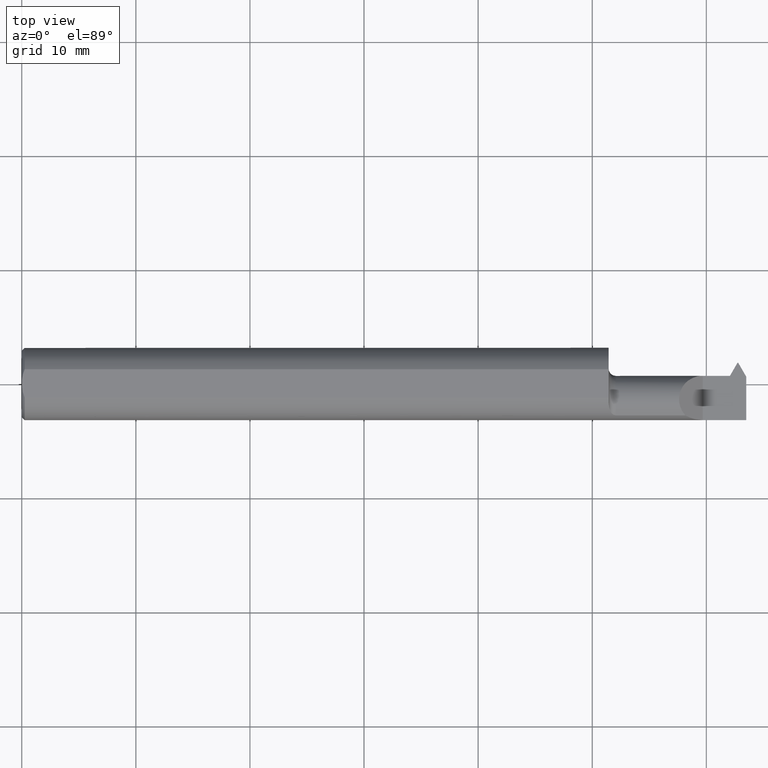
[diagram: clean part render]
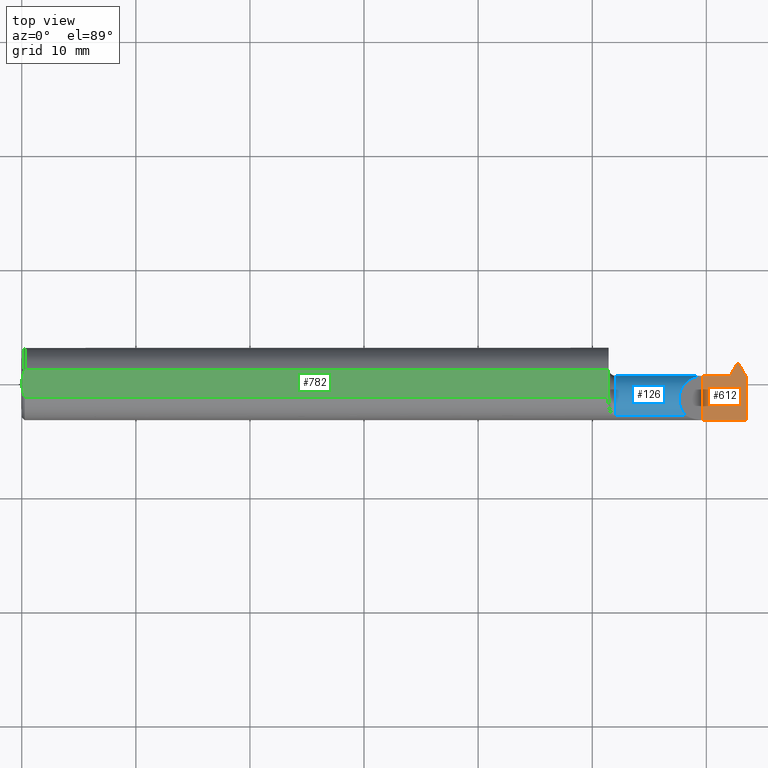
[diagram: same view with three faces highlighted in distinct colors, each labeled with its STEP entity id]
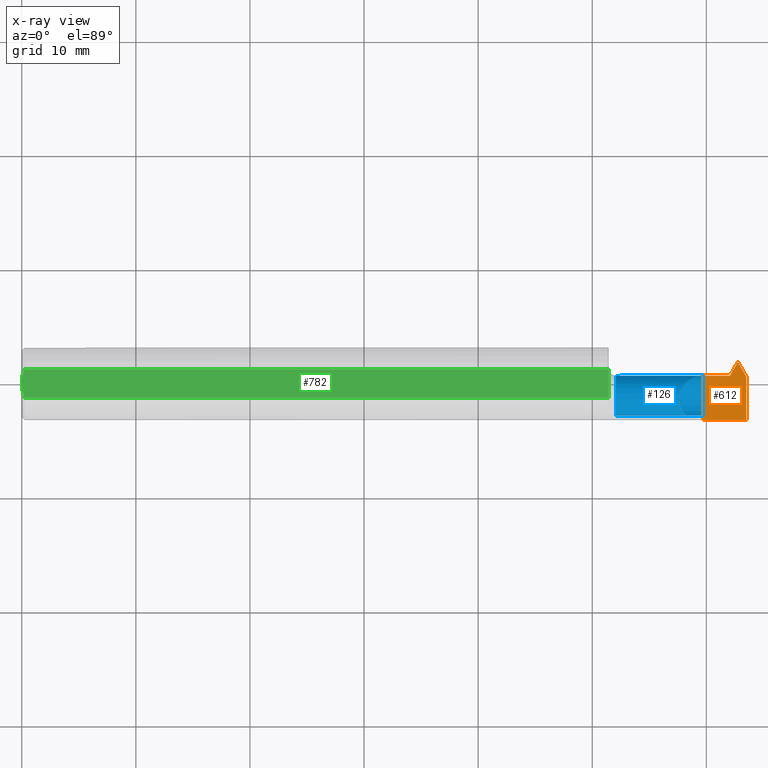
[diagram: x-ray of the same camera — body ghosted, the three highlighted faces saturated]
A machine part, top view with three faces highlighted in distinct colors.
The next image is the same camera in x-ray (body ghosted, the three faces saturated) — at least one of them is partly hidden behind the body in this view.
Their STEP definitions:

[orange] entity #612 — the highlighted planar face has unit normal (-0, 0, -1).
#1 = CARTESIAN_POINT ( 'NONE',  ( 2.024999999999999911, 0.02814999999999995284, 5.817072295949924714E-17 ) ) ;
#16 = EDGE_CURVE ( 'NONE', #765, #645, #353, .T. ) ;
#22 = ORIENTED_EDGE ( 'NONE', *, *, #344, .F. ) ;
#48 = DIRECTION ( 'NONE',  ( -0.000000000000000000, 1.000000000000000000, -0.000000000000000000 ) ) ;
#63 = DIRECTION ( 'NONE',  ( 0.4999999999999965583, 0.8660254037844405950, -0.000000000000000000 ) ) ;
#96 = LINE ( 'NONE', #342, #166 ) ;
#106 = DIRECTION ( 'NONE',  ( 0.4999999999999948375, -0.8660254037844417052, 0.000000000000000000 ) ) ;
#109 = VERTEX_POINT ( 'NONE', #665 ) ;
#115 = VECTOR ( 'NONE', #312, 39.37007874015748143 ) ;
#120 = CARTESIAN_POINT ( 'NONE',  ( 2.500000000000000000, 0.000000000000000000, 0.000000000000000000 ) ) ;
#122 = LINE ( 'NONE', #731, #305 ) ;
#135 = EDGE_CURVE ( 'NONE', #109, #381, #96, .T. ) ;
#166 = VECTOR ( 'NONE', #588, 39.37007874015748143 ) ;
#167 = CARTESIAN_POINT ( 'NONE',  ( 2.500000000000000000, 0.02508559008996252837, 0.000000000000000000 ) ) ;
#177 = VECTOR ( 'NONE', #572, 39.37007874015748143 ) ;
#182 = EDGE_CURVE ( 'NONE', #333, #635, #301, .T. ) ;
#186 = VECTOR ( 'NONE', #48, 39.37007874015748143 ) ;
#187 = AXIS2_PLACEMENT_3D ( 'NONE', #309, #485, #608 ) ;
#196 = EDGE_CURVE ( 'NONE', #645, #109, #609, .T. ) ;
#206 = ORIENTED_EDGE ( 'NONE', *, *, #196, .F. ) ;
#214 = ORIENTED_EDGE ( 'NONE', *, *, #135, .F. ) ;
#243 = CARTESIAN_POINT ( 'NONE',  ( 2.350000000000000089, 0.02815000000000001182, 5.817072295949924714E-17 ) ) ;
#256 = CARTESIAN_POINT ( 'NONE',  ( 2.350000000000000089, -0.1248500000000000165, 1.836970198721029441E-17 ) ) ;
#276 = EDGE_LOOP ( 'NONE', ( #441, #705, #214, #206, #448, #22, #646, #454 ) ) ;
#294 = VECTOR ( 'NONE', #793, 39.37007874015748143 ) ;
#301 = LINE ( 'NONE', #362, #411 ) ;
#305 = VECTOR ( 'NONE', #63, 39.37007874015748854 ) ;
#309 = CARTESIAN_POINT ( 'NONE',  ( 2.500000000000000000, -0.2500000000000000555, 0.000000000000000000 ) ) ;
#312 = DIRECTION ( 'NONE',  ( 1.000000000000000000, 1.860231797550329354E-16, 0.000000000000000000 ) ) ;
#325 = CARTESIAN_POINT ( 'NONE',  ( 2.469749999999999890, 0.07314999999999999281, 0.000000000000000000 ) ) ;
#333 = VERTEX_POINT ( 'NONE', #325 ) ;
#342 = CARTESIAN_POINT ( 'NONE',  ( 2.443769237886467049, 0.02815000000000001182, 0.000000000000000000 ) ) ;
#344 = EDGE_CURVE ( 'NONE', #623, #765, #563, .T. ) ;
#353 = LINE ( 'NONE', #419, #186 ) ;
#362 = CARTESIAN_POINT ( 'NONE',  ( 2.024999999999999911, 0.07314999999999989566, 5.817072295949924714E-17 ) ) ;
#381 = VERTEX_POINT ( 'NONE', #690 ) ;
#400 = CARTESIAN_POINT ( 'NONE',  ( 3.749399456654640735E-32, -0.1248499999999999888, 3.061616997868381169E-16 ) ) ;
#411 = VECTOR ( 'NONE', #558, 39.37007874015748143 ) ;
#419 = CARTESIAN_POINT ( 'NONE',  ( 2.350000000000000089, -0.2500000000000000555, 1.836970198721029441E-17 ) ) ;
#441 = ORIENTED_EDGE ( 'NONE', *, *, #182, .F. ) ;
#448 = ORIENTED_EDGE ( 'NONE', *, *, #16, .F. ) ;
#454 = ORIENTED_EDGE ( 'NONE', *, *, #577, .F. ) ;
#485 = DIRECTION ( 'NONE',  ( -1.224646799147352961E-16, 0.000000000000000000, -1.000000000000000000 ) ) ;
#490 = LINE ( 'NONE', #120, #294 ) ;
#494 = PLANE ( 'NONE',  #187 ) ;
#524 = LINE ( 'NONE', #660, #679 ) ;
#545 = CARTESIAN_POINT ( 'NONE',  ( 2.472249999999999837, 0.07314999999999999281, 0.000000000000000000 ) ) ;
#558 = DIRECTION ( 'NONE',  ( 1.000000000000000000, 1.860231797550329354E-16, 0.000000000000000000 ) ) ;
#561 = VERTEX_POINT ( 'NONE', #167 ) ;
#563 = LINE ( 'NONE', #400, #177 ) ;
#572 = DIRECTION ( 'NONE',  ( -1.000000000000000000, -0.000000000000000000, -0.000000000000000000 ) ) ;
#577 = EDGE_CURVE ( 'NONE', #635, #561, #524, .T. ) ;
#588 = DIRECTION ( 'NONE',  ( 1.000000000000000000, 1.589931800928611612E-15, -0.000000000000000000 ) ) ;
#608 = DIRECTION ( 'NONE',  ( -1.000000000000000000, 0.000000000000000000, 1.224646799147352961E-16 ) ) ;
#609 = LINE ( 'NONE', #1, #115 ) ;
#610 = CARTESIAN_POINT ( 'NONE',  ( 2.500000000000000000, -0.1248500000000000026, 0.000000000000000000 ) ) ;
#612 = ADVANCED_FACE ( 'NONE', ( #789 ), #494, .F. ) ;
#623 = VERTEX_POINT ( 'NONE', #610 ) ;
#635 = VERTEX_POINT ( 'NONE', #545 ) ;
#636 = EDGE_CURVE ( 'NONE', #561, #623, #490, .T. ) ;
#645 = VERTEX_POINT ( 'NONE', #243 ) ;
#646 = ORIENTED_EDGE ( 'NONE', *, *, #636, .F. ) ;
#660 = CARTESIAN_POINT ( 'NONE',  ( 2.472249999999999837, 0.07314999999999999281, 0.000000000000000000 ) ) ;
#665 = CARTESIAN_POINT ( 'NONE',  ( 2.433030381068565173, 0.02814999999999999447, 0.000000000000000000 ) ) ;
#666 = EDGE_CURVE ( 'NONE', #381, #333, #122, .T. ) ;
#679 = VECTOR ( 'NONE', #106, 39.37007874015748143 ) ;
#690 = CARTESIAN_POINT ( 'NONE',  ( 2.443769237886467049, 0.02815000000000001182, 0.000000000000000000 ) ) ;
#705 = ORIENTED_EDGE ( 'NONE', *, *, #666, .F. ) ;
#731 = CARTESIAN_POINT ( 'NONE',  ( 2.469749999999999890, 0.07314999999999999281, 0.000000000000000000 ) ) ;
#765 = VERTEX_POINT ( 'NONE', #256 ) ;
#789 = FACE_OUTER_BOUND ( 'NONE', #276, .T. ) ;
#793 = DIRECTION ( 'NONE',  ( 0.000000000000000000, -1.000000000000000000, 0.000000000000000000 ) ) ;

[blue] entity #126 — the highlighted cylindrical surface (edge-blend (fillet) strip) has radius 2.0828 mm, axis along (-1, -0, -0).
#1 = CARTESIAN_POINT ( 'NONE',  ( 2.024999999999999911, 0.02814999999999995284, 5.817072295949924714E-17 ) ) ;
#6 = DIRECTION ( 'NONE',  ( -1.000000000000000000, -0.000000000000000000, -0.000000000000000000 ) ) ;
#8 = VECTOR ( 'NONE', #6, 39.37007874015748143 ) ;
#10 = CARTESIAN_POINT ( 'NONE',  ( 2.451234871023850737, -0.007219850294039730811, -0.06745093875106342174 ) ) ;
#11 = LINE ( 'NONE', #331, #278 ) ;
#13 = CARTESIAN_POINT ( 'NONE',  ( 2.453251230041400888, -0.03705956632386101651, -0.08200000000000008671 ) ) ;
#17 = ORIENTED_EDGE ( 'NONE', *, *, #363, .F. ) ;
#18 = CARTESIAN_POINT ( 'NONE',  ( 2.500000000000000000, -0.05384999999999960651, -0.08200000000000007283 ) ) ;
#33 = CARTESIAN_POINT ( 'NONE',  ( 2.233393231723701522, -0.04792023988988743100, 0.1166067682762971930 ) ) ;
#37 = AXIS2_PLACEMENT_3D ( 'NONE', #77, #267, #443 ) ;
#44 = VERTEX_POINT ( 'NONE', #715 ) ;
#77 = CARTESIAN_POINT ( 'NONE',  ( 2.049999999999999822, -0.05385000000000013387, 0.000000000000000000 ) ) ;
#85 = CARTESIAN_POINT ( 'NONE',  ( 2.453558178717973437, -0.05385000000000006448, -0.08200000000000008671 ) ) ;
#92 = VERTEX_POINT ( 'NONE', #116 ) ;
#107 = FACE_OUTER_BOUND ( 'NONE', #412, .T. ) ;
#109 = VERTEX_POINT ( 'NONE', #665 ) ;
#112 = CARTESIAN_POINT ( 'NONE',  ( 2.446976212146491303, 0.02220744610134825839, -0.03064742880798467309 ) ) ;
#115 = VECTOR ( 'NONE', #312, 39.37007874015748143 ) ;
#116 = CARTESIAN_POINT ( 'NONE',  ( 2.289520233285355477, -0.1092232590529245567, 0.06047976671464379284 ) ) ;
#126 = ADVANCED_FACE ( 'NONE', ( #107 ), #788, .T. ) ;
#131 =( BOUNDED_CURVE ( )  B_SPLINE_CURVE ( 3, ( #549, #796, #738, #487 ),
 .UNSPECIFIED., .F., .F. ) 
 B_SPLINE_CURVE_WITH_KNOTS ( ( 4, 4 ),
 ( 3.543943011109409458, 3.546790974617836323 ),
 .UNSPECIFIED. ) 
 CURVE ( )  GEOMETRIC_REPRESENTATION_ITEM ( )  RATIONAL_B_SPLINE_CURVE ( ( 1.000000000000000000, 0.9999993240921020154, 0.9999993240921020154, 1.000000000000000000 ) ) 
 REPRESENTATION_ITEM ( '' )  );
#140 = ORIENTED_EDGE ( 'NONE', *, *, #355, .F. ) ;
#147 = ORIENTED_EDGE ( 'NONE', *, *, #169, .F. ) ;
#150 = VERTEX_POINT ( 'NONE', #655 ) ;
#155 = ORIENTED_EDGE ( 'NONE', *, *, #763, .F. ) ;
#164 = VERTEX_POINT ( 'NONE', #241 ) ;
#169 = EDGE_CURVE ( 'NONE', #749, #392, #371, .T. ) ;
#174 = CARTESIAN_POINT ( 'NONE',  ( 2.289520233285355477, -0.1092232590529245567, 0.06047976671464379284 ) ) ;
#176 = CARTESIAN_POINT ( 'NONE',  ( 2.446901295964723833, -0.02341930401921291788, -0.07614442029541586276 ) ) ;
#181 = CARTESIAN_POINT ( 'NONE',  ( 2.427837500586933484, 0.02295711951836851977, -0.02871700526327665773 ) ) ;
#196 = EDGE_CURVE ( 'NONE', #645, #109, #609, .T. ) ;
#199 = CARTESIAN_POINT ( 'NONE',  ( 2.427837500586933484, 0.02295711951836851977, -0.02871700526327665773 ) ) ;
#224 = VERTEX_POINT ( 'NONE', #732 ) ;
#227 = CARTESIAN_POINT ( 'NONE',  ( 2.450332701925785450, -0.01228205133668632335, -0.07095053707884173277 ) ) ;
#232 = CIRCLE ( 'NONE', #752, 0.08200000000000011446 ) ;
#234 = CARTESIAN_POINT ( 'NONE',  ( 2.024999999999999911, -0.05385000000000014081, 0.000000000000000000 ) ) ;
#235 = VERTEX_POINT ( 'NONE', #181 ) ;
#237 = CARTESIAN_POINT ( 'NONE',  ( 2.446837138557887759, 0.02271536081068169927, -0.02936361829919980834 ) ) ;
#241 = CARTESIAN_POINT ( 'NONE',  ( 2.446767348830406696, 0.02295711951836481093, -0.02871700526327581812 ) ) ;
#242 = AXIS2_PLACEMENT_3D ( 'NONE', #234, #477, #405 ) ;
#243 = CARTESIAN_POINT ( 'NONE',  ( 2.350000000000000089, 0.02815000000000001182, 5.817072295949924714E-17 ) ) ;
#246 = EDGE_CURVE ( 'NONE', #164, #235, #306, .T. ) ;
#247 = CARTESIAN_POINT ( 'NONE',  ( 2.244015190534282667, -0.1092232590529245290, -0.06047976671464383447 ) ) ;
#248 = DIRECTION ( 'NONE',  ( -1.000000000000000000, -1.860231797550329354E-16, -0.000000000000000000 ) ) ;
#260 = CARTESIAN_POINT ( 'NONE',  ( 2.453558178717973437, -0.05385000000000006448, -0.08200000000000008671 ) ) ;
#267 = DIRECTION ( 'NONE',  ( -1.000000000000000000, -1.860231797550329107E-16, -0.000000000000000000 ) ) ;
#278 = VECTOR ( 'NONE', #568, 39.37007874015748143 ) ;
#284 = CARTESIAN_POINT ( 'NONE',  ( 2.446901295964723833, -0.02341930401921291788, -0.07614442029541586276 ) ) ;
#287 = ORIENTED_EDGE ( 'NONE', *, *, #618, .T. ) ;
#300 = LINE ( 'NONE', #247, #614 ) ;
#306 = LINE ( 'NONE', #550, #482 ) ;
#311 = CARTESIAN_POINT ( 'NONE',  ( 2.452452630173280301, -0.02103119801956463211, -0.07699899284797048771 ) ) ;
#312 = DIRECTION ( 'NONE',  ( 1.000000000000000000, 1.860231797550329354E-16, 0.000000000000000000 ) ) ;
#315 = VERTEX_POINT ( 'NONE', #321 ) ;
#321 = CARTESIAN_POINT ( 'NONE',  ( 2.446976212146491303, 0.02220744610134825839, -0.03064742880798467309 ) ) ;
#331 = CARTESIAN_POINT ( 'NONE',  ( 2.244015190534282667, -0.1092232590529245290, 0.06047976671464383447 ) ) ;
#332 = VERTEX_POINT ( 'NONE', #379 ) ;
#335 = CARTESIAN_POINT ( 'NONE',  ( 2.433030381068565173, 0.02814999999999999447, 0.000000000000000000 ) ) ;
#340 = CARTESIAN_POINT ( 'NONE',  ( 2.446901295964723833, -0.05385000000000006448, 0.000000000000000000 ) ) ;
#355 = EDGE_CURVE ( 'NONE', #235, #109, #373, .T. ) ;
#363 = EDGE_CURVE ( 'NONE', #150, #224, #624, .T. ) ;
#366 = EDGE_CURVE ( 'NONE', #150, #92, #11, .T. ) ;
#371 = LINE ( 'NONE', #794, #8 ) ;
#373 =( BOUNDED_CURVE ( )  B_SPLINE_CURVE ( 3, ( #199, #698, #507, #335 ),
 .UNSPECIFIED., .F., .F. ) 
 B_SPLINE_CURVE_WITH_KNOTS ( ( 4, 4 ),
 ( 1.213003830136022865, 1.570796326794863917 ),
 .UNSPECIFIED. ) 
 CURVE ( )  GEOMETRIC_REPRESENTATION_ITEM ( )  RATIONAL_B_SPLINE_CURVE ( ( 1.000000000000000000, 0.9893604650975269532, 0.9893604650975269532, 1.000000000000000000 ) ) 
 REPRESENTATION_ITEM ( '' )  );
#379 = CARTESIAN_POINT ( 'NONE',  ( 2.446901295964723833, 0.02229442029541578787, -0.03043069598078715007 ) ) ;
#392 = VERTEX_POINT ( 'NONE', #85 ) ;
#405 = DIRECTION ( 'NONE',  ( 0.000000000000000000, -1.000000000000000000, 0.000000000000000000 ) ) ;
#412 = EDGE_LOOP ( 'NONE', ( #662, #530, #155, #147, #768, #287, #17, #696, #692, #416, #140, #522, #637, #762 ) ) ;
#413 = CARTESIAN_POINT ( 'NONE',  ( 2.451234871023850737, -0.007219850294039730811, -0.06745093875106342174 ) ) ;
#416 = ORIENTED_EDGE ( 'NONE', *, *, #196, .T. ) ;
#424 = DIRECTION ( 'NONE',  ( -1.000000000000000000, -1.860231797550329354E-16, -0.000000000000000000 ) ) ;
#429 = CARTESIAN_POINT ( 'NONE',  ( 2.500000000000000000, -0.05385000000000006448, 0.000000000000000000 ) ) ;
#443 = DIRECTION ( 'NONE',  ( 0.000000000000000000, -1.000000000000000000, 0.000000000000000000 ) ) ;
#462 = CARTESIAN_POINT ( 'NONE',  ( 2.350000000000000089, 0.02815000000000001182, 5.817072295949924714E-17 ) ) ;
#467 = DIRECTION ( 'NONE',  ( -1.000000000000000000, -0.000000000000000000, -0.000000000000000000 ) ) ;
#469 = VERTEX_POINT ( 'NONE', #648 ) ;
#471 = EDGE_CURVE ( 'NONE', #315, #164, #791, .T. ) ;
#477 = DIRECTION ( 'NONE',  ( -1.000000000000000000, -1.860231797550329107E-16, -0.000000000000000000 ) ) ;
#482 = VECTOR ( 'NONE', #248, 39.37007874015748143 ) ;
#487 = CARTESIAN_POINT ( 'NONE',  ( 2.446901295964723833, 0.02229442029541578787, -0.03043069598078715007 ) ) ;
#507 = CARTESIAN_POINT ( 'NONE',  ( 2.431252431409448356, 0.02815000000000004304, -0.009832190419034547713 ) ) ;
#519 = CARTESIAN_POINT ( 'NONE',  ( 2.266883813472912124, 0.02815000000000000141, 0.08311618652708713251 ) ) ;
#522 = ORIENTED_EDGE ( 'NONE', *, *, #246, .F. ) ;
#528 = CARTESIAN_POINT ( 'NONE',  ( 2.448882081099467367, -0.01770465614405487484, -0.07386059291250963998 ) ) ;
#530 = ORIENTED_EDGE ( 'NONE', *, *, #565, .T. ) ;
#534 = EDGE_CURVE ( 'NONE', #92, #645, #759, .T. ) ;
#549 = CARTESIAN_POINT ( 'NONE',  ( 2.446976212146491303, 0.02220744610134825839, -0.03064742880798467309 ) ) ;
#550 = CARTESIAN_POINT ( 'NONE',  ( 2.024999999999999911, 0.02295711951836735057, -0.02871700526327963451 ) ) ;
#554 = DIRECTION ( 'NONE',  ( 0.000000000000000000, 0.000000000000000000, 1.000000000000000000 ) ) ;
#559 = EDGE_CURVE ( 'NONE', #332, #591, #232, .T. ) ;
#560 =( BOUNDED_CURVE ( )  B_SPLINE_CURVE ( 3, ( #260, #13, #311, #10 ),
 .UNSPECIFIED., .F., .T. ) 
 B_SPLINE_CURVE_WITH_KNOTS ( ( 4, 4 ),
 ( 3.320488901919210534, 3.925365243094474987 ),
 .UNSPECIFIED. ) 
 CURVE ( )  GEOMETRIC_REPRESENTATION_ITEM ( )  RATIONAL_B_SPLINE_CURVE ( ( 1.000000000000000000, 0.9697420810547360270, 0.9697420810547360270, 1.000000000000000000 ) ) 
 REPRESENTATION_ITEM ( '' )  );
#565 = EDGE_CURVE ( 'NONE', #591, #469, #733, .T. ) ;
#568 = DIRECTION ( 'NONE',  ( 1.000000000000000000, 1.860231797550329354E-16, 0.000000000000000000 ) ) ;
#589 = AXIS2_PLACEMENT_3D ( 'NONE', #429, #615, #554 ) ;
#591 = VERTEX_POINT ( 'NONE', #176 ) ;
#601 = CARTESIAN_POINT ( 'NONE',  ( 2.446767348830406696, 0.02295711951836481093, -0.02871700526327581812 ) ) ;
#609 = LINE ( 'NONE', #1, #115 ) ;
#614 = VECTOR ( 'NONE', #424, 39.37007874015748143 ) ;
#615 = DIRECTION ( 'NONE',  ( 1.000000000000000000, 0.000000000000000000, 0.000000000000000000 ) ) ;
#618 = EDGE_CURVE ( 'NONE', #44, #224, #300, .T. ) ;
#624 = CIRCLE ( 'NONE', #37, 0.08200000000000014222 ) ;
#637 = ORIENTED_EDGE ( 'NONE', *, *, #471, .F. ) ;
#645 = VERTEX_POINT ( 'NONE', #243 ) ;
#648 = CARTESIAN_POINT ( 'NONE',  ( 2.451234871023850737, -0.007219850294039730811, -0.06745093875106342174 ) ) ;
#652 = CARTESIAN_POINT ( 'NONE',  ( 2.446906763363936310, 0.02246545638879336726, -0.03000712701777952587 ) ) ;
#655 = CARTESIAN_POINT ( 'NONE',  ( 2.049999999999999822, -0.1092232590529244457, 0.06047976671464398019 ) ) ;
#657 = EDGE_CURVE ( 'NONE', #44, #749, #703, .T. ) ;
#662 = ORIENTED_EDGE ( 'NONE', *, *, #559, .T. ) ;
#665 = CARTESIAN_POINT ( 'NONE',  ( 2.433030381068565173, 0.02814999999999999447, 0.000000000000000000 ) ) ;
#692 = ORIENTED_EDGE ( 'NONE', *, *, #534, .T. ) ;
#696 = ORIENTED_EDGE ( 'NONE', *, *, #366, .T. ) ;
#698 = CARTESIAN_POINT ( 'NONE',  ( 2.429502856586511328, 0.02640042517706308114, -0.01950746593837246121 ) ) ;
#703 = CIRCLE ( 'NONE', #589, 0.08200000000000005895 ) ;
#706 = EDGE_CURVE ( 'NONE', #315, #332, #131, .T. ) ;
#715 = CARTESIAN_POINT ( 'NONE',  ( 2.500000000000000000, -0.1092232590529245290, -0.06047976671464384835 ) ) ;
#732 = CARTESIAN_POINT ( 'NONE',  ( 2.049999999999999822, -0.1092232590529244457, -0.06047976671464396631 ) ) ;
#733 =( BOUNDED_CURVE ( )  B_SPLINE_CURVE ( 3, ( #284, #528, #227, #413 ),
 .UNSPECIFIED., .F., .F. ) 
 B_SPLINE_CURVE_WITH_KNOTS ( ( 4, 4 ),
 ( 2.736394332561749465, 2.961070831367609735 ),
 .UNSPECIFIED. ) 
 CURVE ( )  GEOMETRIC_REPRESENTATION_ITEM ( )  RATIONAL_B_SPLINE_CURVE ( ( 1.000000000000000000, 0.9957977946417082560, 0.9957977946417082560, 1.000000000000000000 ) ) 
 REPRESENTATION_ITEM ( '' )  );
#738 = CARTESIAN_POINT ( 'NONE',  ( 2.446926351246418996, 0.02226553178175631059, -0.03050298151534015789 ) ) ;
#749 = VERTEX_POINT ( 'NONE', #18 ) ;
#752 = AXIS2_PLACEMENT_3D ( 'NONE', #340, #467, #778 ) ;
#759 =( BOUNDED_CURVE ( )  B_SPLINE_CURVE ( 3, ( #174, #33, #519, #462 ),
 .UNSPECIFIED., .F., .F. ) 
 B_SPLINE_CURVE_WITH_KNOTS ( ( 4, 4 ),
 ( 5.541836096877577056, 7.853981633974482790 ),
 .UNSPECIFIED. ) 
 CURVE ( )  GEOMETRIC_REPRESENTATION_ITEM ( )  RATIONAL_B_SPLINE_CURVE ( ( 1.000000000000000000, 0.6019579590817382142, 0.6019579590817382142, 1.000000000000000000 ) ) 
 REPRESENTATION_ITEM ( '' )  );
#762 = ORIENTED_EDGE ( 'NONE', *, *, #706, .T. ) ;
#763 = EDGE_CURVE ( 'NONE', #392, #469, #560, .T. ) ;
#768 = ORIENTED_EDGE ( 'NONE', *, *, #657, .F. ) ;
#778 = DIRECTION ( 'NONE',  ( 0.000000000000000000, 0.000000000000000000, -1.000000000000000000 ) ) ;
#788 = CYLINDRICAL_SURFACE ( 'NONE', #242, 0.08200000000000011446 ) ;
#791 =( BOUNDED_CURVE ( )  B_SPLINE_CURVE ( 3, ( #112, #652, #237, #601 ),
 .UNSPECIFIED., .F., .F. ) 
 B_SPLINE_CURVE_WITH_KNOTS ( ( 4, 4 ),
 ( 4.508237422836275599, 4.533492732055259822 ),
 .UNSPECIFIED. ) 
 CURVE ( )  GEOMETRIC_REPRESENTATION_ITEM ( )  RATIONAL_B_SPLINE_CURVE ( ( 1.000000000000000000, 0.9999468481526492258, 0.9999468481526492258, 1.000000000000000000 ) ) 
 REPRESENTATION_ITEM ( '' )  );
#794 = CARTESIAN_POINT ( 'NONE',  ( 2.638030381068564800, -0.05384999999999960651, -0.08200000000000007283 ) ) ;
#796 = CARTESIAN_POINT ( 'NONE',  ( 2.446951323323887095, 0.02223654036413834356, -0.03057522583990323825 ) ) ;

[green] entity #782 — the highlighted planar face has unit normal (0, 0, 1).
#3 = CARTESIAN_POINT ( 'NONE',  ( 2.024999999999999911, 0.04895916665957469188, 0.1148499999999999521 ) ) ;
#23 = AXIS2_PLACEMENT_3D ( 'NONE', #324, #134, #621 ) ;
#42 = B_SPLINE_CURVE_WITH_KNOTS ( 'NONE', 3,
 ( #481, #728, #204, #694, #383, #447 ),
 .UNSPECIFIED., .F., .F.,
 ( 4, 2, 4 ),
 ( 0.001059891666211653424, 0.001694300407100094883, 0.002328709147988536343 ),
 .UNSPECIFIED. ) ;
#43 = ORIENTED_EDGE ( 'NONE', *, *, #313, .F. ) ;
#61 = EDGE_CURVE ( 'NONE', #279, #203, #414, .T. ) ;
#83 = ORIENTED_EDGE ( 'NONE', *, *, #506, .T. ) ;
#94 = CARTESIAN_POINT ( 'NONE',  ( 0.000000000000000000, -0.04895916665957469188, 0.1148499999999999521 ) ) ;
#121 = CARTESIAN_POINT ( 'NONE',  ( 0.01000000000000014939, 0.04895916665957469188, 0.1148499999999999521 ) ) ;
#134 = DIRECTION ( 'NONE',  ( 0.000000000000000000, 0.000000000000000000, 1.000000000000000000 ) ) ;
#137 = ORIENTED_EDGE ( 'NONE', *, *, #61, .T. ) ;
#171 = B_SPLINE_CURVE_WITH_KNOTS ( 'NONE', 3,
 ( #775, #722, #586, #233 ),
 .UNSPECIFIED., .F., .F.,
 ( 4, 4 ),
 ( 0.002328709147988536343, 0.003597800360742826626 ),
 .UNSPECIFIED. ) ;
#195 = EDGE_LOOP ( 'NONE', ( #83, #510, #137, #219, #43 ) ) ;
#203 = VERTEX_POINT ( 'NONE', #121 ) ;
#204 = CARTESIAN_POINT ( 'NONE',  ( 0.004414493321357296045, -0.03313351293251454166, 0.1148499999999999660 ) ) ;
#209 = EDGE_CURVE ( 'NONE', #501, #279, #681, .T. ) ;
#219 = ORIENTED_EDGE ( 'NONE', *, *, #435, .F. ) ;
#233 = CARTESIAN_POINT ( 'NONE',  ( 0.01000000000000014939, 0.04895916665957469188, 0.1148499999999999521 ) ) ;
#264 = VERTEX_POINT ( 'NONE', #492 ) ;
#279 = VERTEX_POINT ( 'NONE', #3 ) ;
#290 = DIRECTION ( 'NONE',  ( -1.000000000000000000, -0.000000000000000000, -0.000000000000000000 ) ) ;
#313 = EDGE_CURVE ( 'NONE', #757, #264, #42, .T. ) ;
#324 = CARTESIAN_POINT ( 'NONE',  ( 2.752883550275615487, 0.1248500000000000026, 0.1148499999999999521 ) ) ;
#343 = VECTOR ( 'NONE', #290, 39.37007874015748143 ) ;
#348 = LINE ( 'NONE', #94, #656 ) ;
#382 = FACE_OUTER_BOUND ( 'NONE', #195, .T. ) ;
#383 = CARTESIAN_POINT ( 'NONE',  ( -7.933430635897561254E-17, -0.008414813278457880172, 0.1148499999999999660 ) ) ;
#414 = LINE ( 'NONE', #776, #343 ) ;
#425 = CARTESIAN_POINT ( 'NONE',  ( 2.024999999999999911, 0.1248499999999998639, 0.1148499999999999521 ) ) ;
#435 = EDGE_CURVE ( 'NONE', #264, #203, #171, .T. ) ;
#439 = PLANE ( 'NONE',  #23 ) ;
#447 = CARTESIAN_POINT ( 'NONE',  ( 0.000000000000000000, 0.000000000000000000, 0.1148499999999999521 ) ) ;
#470 = CARTESIAN_POINT ( 'NONE',  ( 2.024999999999999911, -0.04895916665957478209, 0.1148499999999999521 ) ) ;
#481 = CARTESIAN_POINT ( 'NONE',  ( 0.01000000000000014939, -0.04895916665957469188, 0.1148499999999999521 ) ) ;
#492 = CARTESIAN_POINT ( 'NONE',  ( 0.000000000000000000, 0.000000000000000000, 0.1148499999999999521 ) ) ;
#501 = VERTEX_POINT ( 'NONE', #470 ) ;
#506 = EDGE_CURVE ( 'NONE', #757, #501, #348, .T. ) ;
#510 = ORIENTED_EDGE ( 'NONE', *, *, #209, .T. ) ;
#540 = DIRECTION ( 'NONE',  ( 1.000000000000000000, 0.000000000000000000, 0.000000000000000000 ) ) ;
#586 = CARTESIAN_POINT ( 'NONE',  ( 0.003881058084116530311, 0.03335534922718986356, 0.1148499999999999521 ) ) ;
#613 = VECTOR ( 'NONE', #672, 39.37007874015748143 ) ;
#621 = DIRECTION ( 'NONE',  ( 1.000000000000000000, 0.000000000000000000, -0.000000000000000000 ) ) ;
#656 = VECTOR ( 'NONE', #540, 39.37007874015748143 ) ;
#672 = DIRECTION ( 'NONE',  ( -1.860231797550329354E-16, 1.000000000000000000, 0.000000000000000000 ) ) ;
#681 = LINE ( 'NONE', #425, #613 ) ;
#694 = CARTESIAN_POINT ( 'NONE',  ( 0.0009329797661891488150, -0.01671851415607274530, 0.1148499999999999244 ) ) ;
#722 = CARTESIAN_POINT ( 'NONE',  ( -8.474402044719765530E-17, 0.01683325733139112365, 0.1148499999999999521 ) ) ;
#728 = CARTESIAN_POINT ( 'NONE',  ( 0.006957100361671281381, -0.04119951620459590125, 0.1148499999999999521 ) ) ;
#757 = VERTEX_POINT ( 'NONE', #758 ) ;
#758 = CARTESIAN_POINT ( 'NONE',  ( 0.01000000000000014939, -0.04895916665957469188, 0.1148499999999999521 ) ) ;
#775 = CARTESIAN_POINT ( 'NONE',  ( 0.000000000000000000, 0.000000000000000000, 0.1148499999999999521 ) ) ;
#776 = CARTESIAN_POINT ( 'NONE',  ( 0.000000000000000000, 0.04895916665957469188, 0.1148499999999999521 ) ) ;
#782 = ADVANCED_FACE ( 'NONE', ( #382 ), #439, .T. ) ;